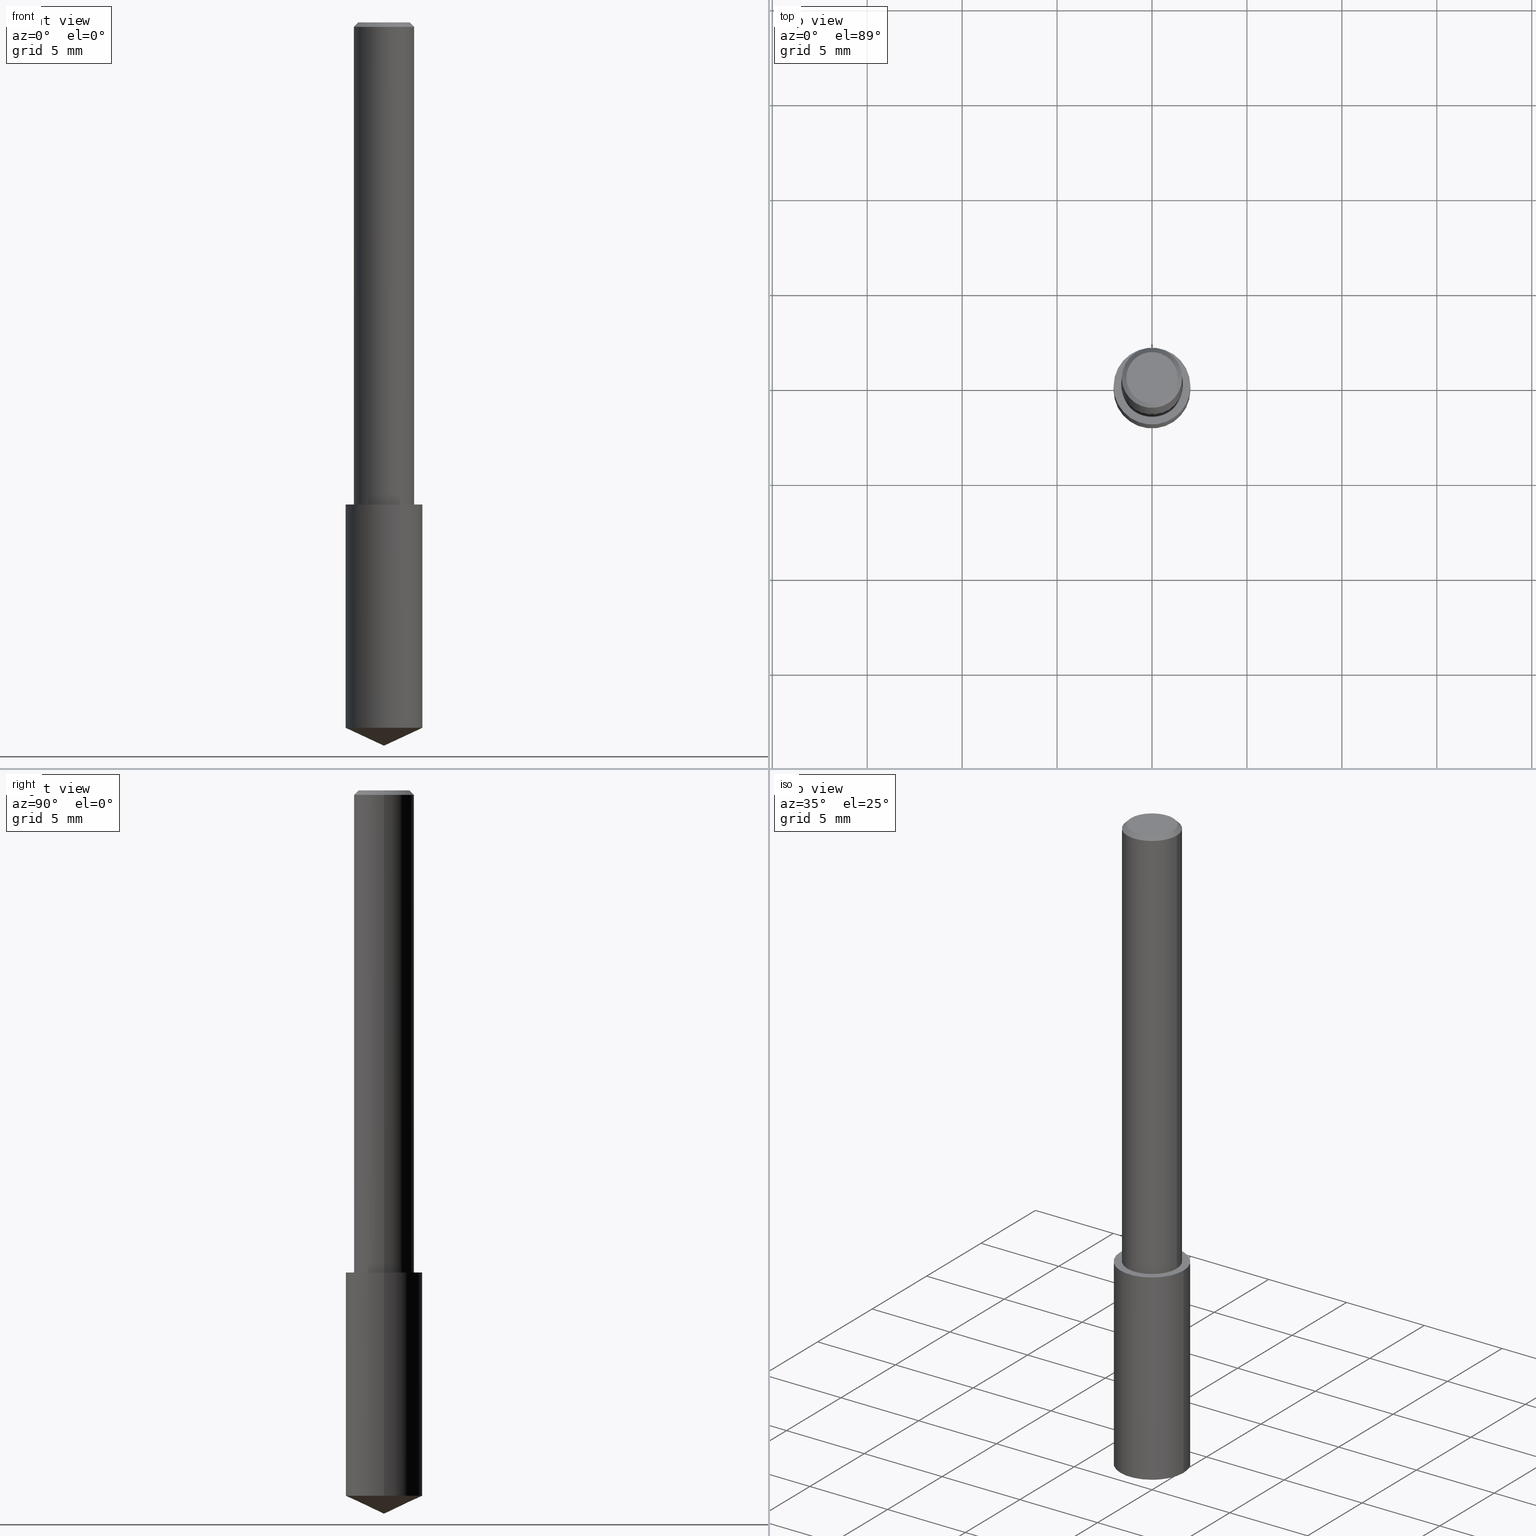
[diagram: canonical four-view strip — front | top / right | iso, engineering-drawing reading convention]
A machine part, canonical four-view strip (front | top / right | iso — engineering-drawing reading convention). The complete STEP part file that produces these views, byte-faithful:
ISO-10303-21;
HEADER;
FILE_DESCRIPTION (( 'STEP AP203' ),
    '1' );
FILE_NAME ('06098.STEP',
    '2024-04-30T18:20:22',
    ( '' ),
    ( '' ),
    'SwSTEP 2.0',
    'SolidWorks 2023',
    '' );
FILE_SCHEMA (( 'CONFIG_CONTROL_DESIGN' ));
ENDSEC;

DATA;
#1 = CARTESIAN_POINT ( 'NONE',  ( 3.577318044959073984E-29, -5.107462080682076738E-15, -1.462835279645047226 ) ) ;
#2 = CONICAL_SURFACE ( 'NONE', #197, 84.42940631927498885, 1.134464013796318893 ) ;
#3 = EDGE_CURVE ( 'NONE', #205, #311, #156, .T. ) ;
#4 = CIRCLE ( 'NONE', #227, 0.07969999999999999307 ) ;
#5 = CARTESIAN_POINT ( 'NONE',  ( 2.292627005798581499E-31, -3.273263755165471417E-17, -0.009375000000000063838 ) ) ;
#6 = VERTEX_POINT ( 'NONE', #81 ) ;
#7 = ORIENTED_EDGE ( 'NONE', *, *, #94, .T. ) ;
#8 = COORDINATED_UNIVERSAL_TIME_OFFSET ( 5, 0, .BEHIND. ) ;
#9 = VERTEX_POINT ( 'NONE', #179 ) ;
#10 = AXIS2_PLACEMENT_3D ( 'NONE', #5, #210, #291 ) ;
#11 = ORIENTED_EDGE ( 'NONE', *, *, #137, .F. ) ;
#12 = CARTESIAN_POINT ( 'NONE',  ( 2.292627005798581499E-31, -3.273263755165471417E-17, -0.009375000000000063838 ) ) ;
#13 = EDGE_CURVE ( 'NONE', #311, #205, #36, .T. ) ;
#14 = ORIENTED_EDGE ( 'NONE', *, *, #84, .F. ) ;
#15 = DIRECTION ( 'NONE',  ( -2.445468806185136597E-29, 3.491481338843145583E-15, 1.000000000000000000 ) ) ;
#16 = FACE_OUTER_BOUND ( 'NONE', #20, .T. ) ;
#17 = CC_DESIGN_SECURITY_CLASSIFICATION ( #308, ( #241 ) ) ;
#18 = ORIENTED_EDGE ( 'NONE', *, *, #312, .F. ) ;
#19 = DIRECTION ( 'NONE',  ( 1.000000000000000000, -6.982962677686266711E-15, 0.000000000000000000 ) ) ;
#20 = EDGE_LOOP ( 'NONE', ( #133, #102, #181, #62 ) ) ;
#21 = CARTESIAN_POINT ( 'NONE',  ( 2.292627005798581499E-31, -3.273263755165471417E-17, -0.009375000000000063838 ) ) ;
#22 = AXIS2_PLACEMENT_3D ( 'NONE', #99, #318, #124 ) ;
#23 = ORIENTED_EDGE ( 'NONE', *, *, #3, .T. ) ;
#24 = ADVANCED_FACE ( 'NONE', ( #28 ), #116, .F. ) ;
#25 = ADVANCED_FACE ( 'NONE', ( #96 ), #83, .F. ) ;
#26 = APPROVAL ( #184, 'UNSPECIFIED' ) ;
#27 = APPROVAL_DATE_TIME ( #340, #132 ) ;
#28 = FACE_OUTER_BOUND ( 'NONE', #239, .T. ) ;
#29 = ORIENTED_EDGE ( 'NONE', *, *, #303, .F. ) ;
#30 = COORDINATED_UNIVERSAL_TIME_OFFSET ( 5, 0, .BEHIND. ) ;
#31 = VECTOR ( 'NONE', #257, 39.37007874015748143 ) ;
#32 = APPROVAL_ROLE ( '' ) ;
#33 = EDGE_LOOP ( 'NONE', ( #64, #287, #11 ) ) ;
#34 = ADVANCED_FACE ( 'NONE', ( #222 ), #310, .T. ) ;
#35 = DIRECTION ( 'NONE',  ( 2.445468806185136597E-29, -3.491481338843145583E-15, -1.000000000000000000 ) ) ;
#36 = CIRCLE ( 'NONE', #298, 0.05312499999999999861 ) ;
#37 = PERSON_AND_ORGANIZATION_ROLE ( 'design_supplier' ) ;
#38 = COORDINATED_UNIVERSAL_TIME_OFFSET ( 5, 0, .BEHIND. ) ;
#39 = AXIS2_PLACEMENT_3D ( 'NONE', #282, #262, #286 ) ;
#40 = VERTEX_POINT ( 'NONE', #216 ) ;
#41 = MANIFOLD_SOLID_BREP ( 'Body-Move/Copy2[1]', #240 ) ;
#42 = LINE ( 'NONE', #110, #122 ) ;
#43 = CALENDAR_DATE ( 2024, 30, 4 ) ;
#44 = ORIENTED_EDGE ( 'NONE', *, *, #301, .F. ) ;
#45 = FACE_OUTER_BOUND ( 'NONE', #223, .T. ) ;
#46 =( NAMED_UNIT ( * ) PLANE_ANGLE_UNIT ( ) SI_UNIT ( $, .RADIAN. ) );
#47 = DIRECTION ( 'NONE',  ( -2.445468806185136877E-29, 3.491481338843145188E-15, 1.000000000000000000 ) ) ;
#48 = PERSON_AND_ORGANIZATION_ROLE ( 'design_owner' ) ;
#49 = DIRECTION ( 'NONE',  ( 1.000000000000000000, -6.982962677686266711E-15, 0.000000000000000000 ) ) ;
#50 = CARTESIAN_POINT ( 'NONE',  ( -3.743544432386672853E-50, 5.344789307371238476E-36, 1.530808498934197599E-21 ) ) ;
#51 = DIRECTION ( 'NONE',  ( 1.000000000000000000, -6.982962677686270655E-15, 0.000000000000000000 ) ) ;
#52 = CONICAL_SURFACE ( 'NONE', #244, 0.06250000000000000000, 0.7853981633974450594 ) ;
#53 = CALENDAR_DATE ( 2024, 30, 4 ) ;
#54 = CC_DESIGN_PERSON_AND_ORGANIZATION_ASSIGNMENT ( #143, #231, ( #263 ) ) ;
#55 = VERTEX_POINT ( 'NONE', #324 ) ;
#56 = FACE_OUTER_BOUND ( 'NONE', #279, .T. ) ;
#57 = EDGE_CURVE ( 'NONE', #40, #55, #219, .T. ) ;
#58 = VECTOR ( 'NONE', #47, 39.37007874015748143 ) ;
#59 = ADVANCED_FACE ( 'NONE', ( #172 ), #2, .T. ) ;
#60 = ADVANCED_FACE ( 'NONE', ( #321 ), #52, .T. ) ;
#61 = AXIS2_PLACEMENT_3D ( 'NONE', #249, #15, #277 ) ;
#62 = ORIENTED_EDGE ( 'NONE', *, *, #94, .F. ) ;
#63 = DIRECTION ( 'NONE',  ( -1.000000000000000000, 6.982962677686265922E-15, -4.876176775795935793E-29 ) ) ;
#64 = ORIENTED_EDGE ( 'NONE', *, *, #254, .F. ) ;
#65 = AXIS2_PLACEMENT_3D ( 'NONE', #173, #199, #306 ) ;
#66 = ORIENTED_EDGE ( 'NONE', *, *, #13, .F. ) ;
#67 = LINE ( 'NONE', #120, #31 ) ;
#68 = CYLINDRICAL_SURFACE ( 'NONE', #61, 0.07969999999999999307 ) ;
#69 = CC_DESIGN_APPROVAL ( #89, ( #241 ) ) ;
#70 = DIRECTION ( 'NONE',  ( -2.445468806185136597E-29, 3.491481338843145583E-15, 1.000000000000000000 ) ) ;
#71 = DIRECTION ( 'NONE',  ( -2.445468806185136597E-29, 3.491481338843145583E-15, 1.000000000000000000 ) ) ;
#72 = DIRECTION ( 'NONE',  ( -2.445468806185136597E-29, 3.491481338843145583E-15, 1.000000000000000000 ) ) ;
#73 = ORIENTED_EDGE ( 'NONE', *, *, #193, .F. ) ;
#74 = SHAPE_DEFINITION_REPRESENTATION ( #245, #104 ) ;
#75 = COORDINATED_UNIVERSAL_TIME_OFFSET ( 5, 0, .BEHIND. ) ;
#76 = AXIS2_PLACEMENT_3D ( 'NONE', #331, #302, #63 ) ;
#77 = EDGE_LOOP ( 'NONE', ( #164, #225, #44, #170 ) ) ;
#78 = LINE ( 'NONE', #80, #248 ) ;
#79 = DATE_TIME_ROLE ( 'classification_date' ) ;
#80 = CARTESIAN_POINT ( 'NONE',  ( -0.06250000000000000000, 4.037025298037369491E-16, -0.009375000000000063838 ) ) ;
#81 = CARTESIAN_POINT ( 'NONE',  ( -0.07969999999999996532, -4.541159520281276939E-15, -1.462835279645047226 ) ) ;
#82 = SECURITY_CLASSIFICATION_LEVEL ( 'unclassified' ) ;
#83 = PLANE ( 'NONE',  #147 ) ;
#84 = EDGE_CURVE ( 'NONE', #311, #251, #78, .T. ) ;
#85 = VERTEX_POINT ( 'NONE', #127 ) ;
#86 = CARTESIAN_POINT ( 'NONE',  ( 0.000000000000000000, 0.000000000000000000, 0.000000000000000000 ) ) ;
#87 = ADVANCED_FACE ( 'NONE', ( #56 ), #141, .T. ) ;
#88 = PERSON_AND_ORGANIZATION ( #139, #207 ) ;
#89 = APPROVAL ( #267, 'UNSPECIFIED' ) ;
#90 = DIRECTION ( 'NONE',  ( -2.445468806185136597E-29, 3.491481338843145583E-15, 1.000000000000000000 ) ) ;
#91 = EDGE_LOOP ( 'NONE', ( #200, #275 ) ) ;
#92 = DIRECTION ( 'NONE',  ( -1.000000000000000000, 6.982962677686265922E-15, -4.876176775795935793E-29 ) ) ;
#93 = CIRCLE ( 'NONE', #235, 0.07969999999999999307 ) ;
#94 = EDGE_CURVE ( 'NONE', #251, #55, #220, .T. ) ;
#95 = APPLICATION_PROTOCOL_DEFINITION ( 'international standard', 'config_control_design', 1994, #107 ) ;
#96 = FACE_OUTER_BOUND ( 'NONE', #158, .T. ) ;
#97 = APPROVAL_PERSON_ORGANIZATION ( #260, #132, #337 ) ;
#98 = DIRECTION ( 'NONE',  ( 1.000000000000000000, -6.982962677686266711E-15, 0.000000000000000000 ) ) ;
#99 = CARTESIAN_POINT ( 'NONE',  ( -7.487088864773345706E-50, 1.068957861474247695E-35, 3.061616997868395197E-21 ) ) ;
#100 = DIRECTION ( 'NONE',  ( -2.445468806185136597E-29, 3.491481338843145583E-15, 1.000000000000000000 ) ) ;
#101 = AXIS2_PLACEMENT_3D ( 'NONE', #21, #70, #19 ) ;
#102 = ORIENTED_EDGE ( 'NONE', *, *, #130, .T. ) ;
#103 = FACE_OUTER_BOUND ( 'NONE', #328, .T. ) ;
#104 = ADVANCED_BREP_SHAPE_REPRESENTATION ( '06098', ( #41, #271, #39 ), #327 ) ;
#105 = VECTOR ( 'NONE', #203, 39.37007874015748143 ) ;
#106 = CYLINDRICAL_SURFACE ( 'NONE', #317, 0.06250000000000006939 ) ;
#107 = APPLICATION_CONTEXT ( 'configuration controlled 3d designs of mechanical parts and assemblies' ) ;
#108 = ADVANCED_FACE ( 'NONE', ( #103 ), #218, .T. ) ;
#109 = ORIENTED_EDGE ( 'NONE', *, *, #137, .T. ) ;
#110 = CARTESIAN_POINT ( 'NONE',  ( -0.07969999999999999307, -2.925178778442346967E-15, -1.000000000000000222 ) ) ;
#111 = DIRECTION ( 'NONE',  ( 1.000000000000000000, -6.982962677686265133E-15, 0.000000000000000000 ) ) ;
#112 = AXIS2_PLACEMENT_3D ( 'NONE', #150, #230, #176 ) ;
#113 = VECTOR ( 'NONE', #315, 39.37007874015748143 ) ;
#114 = APPLICATION_PROTOCOL_DEFINITION ( 'international standard', 'config_control_design', 1994, #131 ) ;
#115 = CARTESIAN_POINT ( 'NONE',  ( 3.668203209277704895E-29, -5.237222008264718177E-15, -1.500000000000000222 ) ) ;
#116 = PLANE ( 'NONE',  #190 ) ;
#117 = CARTESIAN_POINT ( 'NONE',  ( -9.261009624683002666E-28, 1.322226732217803884E-13, 37.87007874015748143 ) ) ;
#118 = ORIENTED_EDGE ( 'NONE', *, *, #134, .T. ) ;
#119 = DIRECTION ( 'NONE',  ( 1.000000000000000000, -6.982962677686264344E-15, 0.000000000000000000 ) ) ;
#120 = CARTESIAN_POINT ( 'NONE',  ( 3.668203209277704895E-29, -5.237222008264718177E-15, -1.500000000000000222 ) ) ;
#121 = CARTESIAN_POINT ( 'NONE',  ( -7.487088864773345706E-50, 1.068957861474247695E-35, 3.061616997868395197E-21 ) ) ;
#122 = VECTOR ( 'NONE', #316, 39.37007874015748143 ) ;
#123 = ADVANCED_FACE ( 'NONE', ( #305 ), #246, .F. ) ;
#124 = DIRECTION ( 'NONE',  ( 1.000000000000000000, -6.982962677686266711E-15, 4.876176628004948512E-29 ) ) ;
#125 = ADVANCED_FACE ( 'NONE', ( #16 ), #106, .T. ) ;
#126 = APPROVAL_DATE_TIME ( #186, #26 ) ;
#127 = CARTESIAN_POINT ( 'NONE',  ( 0.07969999999999999307, -4.048023464254741036E-15, -1.000000000000000222 ) ) ;
#128 = EDGE_LOOP ( 'NONE', ( #18, #66, #217, #7 ) ) ;
#129 = DIRECTION ( 'NONE',  ( -2.445468806185136597E-29, 3.491481338843145583E-15, 1.000000000000000000 ) ) ;
#130 = EDGE_CURVE ( 'NONE', #283, #40, #313, .T. ) ;
#131 = APPLICATION_CONTEXT ( 'configuration controlled 3d designs of mechanical parts and assemblies' ) ;
#132 = APPROVAL ( #229, 'UNSPECIFIED' ) ;
#133 = ORIENTED_EDGE ( 'NONE', *, *, #215, .F. ) ;
#134 = EDGE_CURVE ( 'NONE', #165, #85, #288, .T. ) ;
#135 = EDGE_CURVE ( 'NONE', #40, #283, #278, .T. ) ;
#136 = DIRECTION ( 'NONE',  ( 1.000000000000000000, -6.982962677686265133E-15, 0.000000000000000000 ) ) ;
#137 = EDGE_CURVE ( 'NONE', #6, #165, #93, .T. ) ;
#138 = ORIENTED_EDGE ( 'NONE', *, *, #178, .F. ) ;
#139 = PERSON ( 'UNSPECIFIED', 'UNSPECIFIED', 'UNSPECIFIED', ('UNSPECIFIED'), ('UNSPECIFIED'), ('UNSPECIFIED') ) ;
#140 = CARTESIAN_POINT ( 'NONE',  ( 0.07969999999999996532, -5.664004206093671797E-15, -1.462835279645047226 ) ) ;
#141 = CONICAL_SURFACE ( 'NONE', #226, 84.42940631927498885, 1.134464013796318893 ) ;
#142 = ORIENTED_EDGE ( 'NONE', *, *, #254, .T. ) ;
#143 = PERSON_AND_ORGANIZATION ( #139, #207 ) ;
#144 = ORIENTED_EDGE ( 'NONE', *, *, #183, .F. ) ;
#145 = CARTESIAN_POINT ( 'NONE',  ( 3.668203209277704895E-29, -5.237222008264718177E-15, -1.500000000000000222 ) ) ;
#146 = CARTESIAN_POINT ( 'NONE',  ( -0.06250000000000012490, -1.318017778347335489E-15, -1.000000000000000222 ) ) ;
#147 = AXIS2_PLACEMENT_3D ( 'NONE', #276, #250, #329 ) ;
#148 = LOCAL_TIME ( 14, 20, 22.00000000000000000, #38 ) ;
#149 = LINE ( 'NONE', #145, #198 ) ;
#150 = CARTESIAN_POINT ( 'NONE',  ( 2.445468806185137438E-29, -3.491481338843146371E-15, -1.000000000000000222 ) ) ;
#151 = PERSON_AND_ORGANIZATION ( #139, #207 ) ;
#152 = CARTESIAN_POINT ( 'NONE',  ( 2.445468806185137438E-29, -3.491481338843146371E-15, -1.000000000000000222 ) ) ;
#153 =( LENGTH_UNIT ( ) NAMED_UNIT ( * ) SI_UNIT ( $, .METRE. ) );
#154 = ORIENTED_EDGE ( 'NONE', *, *, #303, .T. ) ;
#155 = ORIENTED_EDGE ( 'NONE', *, *, #3, .F. ) ;
#156 = CIRCLE ( 'NONE', #22, 0.05312499999999999861 ) ;
#157 = PERSON_AND_ORGANIZATION_ROLE ( 'creator' ) ;
#158 = EDGE_LOOP ( 'NONE', ( #338, #195 ) ) ;
#159 = DATE_AND_TIME ( #238, #274 ) ;
#160 = DIRECTION ( 'NONE',  ( -1.000000000000000000, 6.982962677686266711E-15, 0.000000000000000000 ) ) ;
#161 = DESIGN_CONTEXT ( 'detailed design', #131, 'design' ) ;
#162 = AXIS2_PLACEMENT_3D ( 'NONE', #152, #330, #119 ) ;
#163 = CC_DESIGN_DATE_AND_TIME_ASSIGNMENT ( #292, #79, ( #308 ) ) ;
#164 = ORIENTED_EDGE ( 'NONE', *, *, #183, .T. ) ;
#165 = VERTEX_POINT ( 'NONE', #140 ) ;
#166 = AXIS2_PLACEMENT_3D ( 'NONE', #169, #285, #136 ) ;
#167 = DIRECTION ( 'NONE',  ( 1.000000000000000000, -6.982962677686270655E-15, 0.000000000000000000 ) ) ;
#168 = MECHANICAL_CONTEXT ( 'NONE', #107, 'mechanical' ) ;
#169 = CARTESIAN_POINT ( 'NONE',  ( 2.445468806185137438E-29, -3.491481338843146371E-15, -1.000000000000000222 ) ) ;
#170 = ORIENTED_EDGE ( 'NONE', *, *, #134, .F. ) ;
#171 =( CONVERSION_BASED_UNIT ( 'INCH', #259 ) LENGTH_UNIT ( ) NAMED_UNIT ( #213 ) );
#172 = FACE_OUTER_BOUND ( 'NONE', #33, .T. ) ;
#173 = CARTESIAN_POINT ( 'NONE',  ( 2.445468806185136877E-29, -3.491481338843145977E-15, -1.000000000000000222 ) ) ;
#174 = ADVANCED_FACE ( 'NONE', ( #45 ), #68, .T. ) ;
#175 = CIRCLE ( 'NONE', #101, 0.06250000000000000000 ) ;
#176 = DIRECTION ( 'NONE',  ( 1.000000000000000000, -6.982962677686264344E-15, 0.000000000000000000 ) ) ;
#177 = LINE ( 'NONE', #202, #293 ) ;
#178 = EDGE_CURVE ( 'NONE', #6, #9, #42, .T. ) ;
#179 = CARTESIAN_POINT ( 'NONE',  ( -0.07969999999999999307, -3.733169149361811559E-15, -1.000000000000000222 ) ) ;
#180 = ADVANCED_FACE ( 'NONE', ( #264 ), #214, .T. ) ;
#181 = ORIENTED_EDGE ( 'NONE', *, *, #57, .T. ) ;
#182 = PERSON_AND_ORGANIZATION ( #139, #207 ) ;
#183 = EDGE_CURVE ( 'NONE', #165, #6, #258, .T. ) ;
#184 = APPROVAL_STATUS ( 'not_yet_approved' ) ;
#185 = CIRCLE ( 'NONE', #65, 0.07969999999999999307 ) ;
#186 = DATE_AND_TIME ( #53, #148 ) ;
#187 = DIRECTION ( 'NONE',  ( -2.445468806185136597E-29, 3.491481338843145583E-15, 1.000000000000000000 ) ) ;
#188 = ORIENTED_EDGE ( 'NONE', *, *, #339, .F. ) ;
#189 = PERSON_AND_ORGANIZATION ( #139, #207 ) ;
#190 = AXIS2_PLACEMENT_3D ( 'NONE', #50, #232, #92 ) ;
#191 = APPROVAL_PERSON_ORGANIZATION ( #189, #26, #32 ) ;
#192 = LOCAL_TIME ( 14, 20, 22.00000000000000000, #289 ) ;
#193 = EDGE_CURVE ( 'NONE', #233, #165, #149, .T. ) ;
#194 = AXIS2_PLACEMENT_3D ( 'NONE', #1, #72, #51 ) ;
#195 = ORIENTED_EDGE ( 'NONE', *, *, #130, .F. ) ;
#196 = DIRECTION ( 'NONE',  ( -2.445468806185136597E-29, 3.491481338843145583E-15, 1.000000000000000000 ) ) ;
#197 = AXIS2_PLACEMENT_3D ( 'NONE', #117, #71, #49 ) ;
#198 = VECTOR ( 'NONE', #256, 39.37007874015748143 ) ;
#199 = DIRECTION ( 'NONE',  ( -2.445468806185136597E-29, 3.491481338843145583E-15, 1.000000000000000000 ) ) ;
#200 = ORIENTED_EDGE ( 'NONE', *, *, #301, .T. ) ;
#201 = CARTESIAN_POINT ( 'NONE',  ( 2.445468806185136877E-29, -3.491481338843145977E-15, -1.000000000000000222 ) ) ;
#202 = CARTESIAN_POINT ( 'NONE',  ( 0.06250000000000000000, -4.615137624123754923E-16, -0.009375000000000063838 ) ) ;
#203 = DIRECTION ( 'NONE',  ( -2.445468806185136877E-29, 3.491481338843145188E-15, 1.000000000000000000 ) ) ;
#204 = CC_DESIGN_PERSON_AND_ORGANIZATION_ASSIGNMENT ( #182, #37, ( #241 ) ) ;
#205 = VERTEX_POINT ( 'NONE', #319 ) ;
#206 = CLOSED_SHELL ( 'NONE', ( #60, #108, #25, #125, #180, #24 ) ) ;
#207 = ORGANIZATION ( 'UNSPECIFIED', 'UNSPECIFIED', '' ) ;
#208 = EDGE_LOOP ( 'NONE', ( #155, #247, #154, #14 ) ) ;
#209 = PERSON_AND_ORGANIZATION_ROLE ( 'classification_officer' ) ;
#210 = DIRECTION ( 'NONE',  ( 2.445468806185136597E-29, -3.491481338843145583E-15, -1.000000000000000000 ) ) ;
#211 = PERSON_AND_ORGANIZATION ( #139, #207 ) ;
#212 = APPROVAL_ROLE ( '' ) ;
#213 = DIMENSIONAL_EXPONENTS ( 1.000000000000000000, 0.000000000000000000, 0.000000000000000000, 0.000000000000000000, 0.000000000000000000, 0.000000000000000000, 0.000000000000000000 ) ;
#214 = CONICAL_SURFACE ( 'NONE', #10, 0.06250000000000000000, 0.7853981633974450594 ) ;
#215 = EDGE_CURVE ( 'NONE', #283, #251, #323, .T. ) ;
#216 = CARTESIAN_POINT ( 'NONE',  ( 0.06250000000000012490, -3.927916506198539224E-15, -1.000000000000000222 ) ) ;
#217 = ORIENTED_EDGE ( 'NONE', *, *, #84, .T. ) ;
#218 = CYLINDRICAL_SURFACE ( 'NONE', #273, 0.06250000000000006939 ) ;
#219 = LINE ( 'NONE', #335, #105 ) ;
#220 = CIRCLE ( 'NONE', #269, 0.06250000000000000000 ) ;
#221 = LOCAL_TIME ( 14, 20, 22.00000000000000000, #8 ) ;
#222 = FACE_OUTER_BOUND ( 'NONE', #77, .T. ) ;
#223 = EDGE_LOOP ( 'NONE', ( #138, #109, #118, #188 ) ) ;
#224 = DATE_AND_TIME ( #253, #192 ) ;
#225 = ORIENTED_EDGE ( 'NONE', *, *, #178, .T. ) ;
#226 = AXIS2_PLACEMENT_3D ( 'NONE', #268, #129, #98 ) ;
#227 = AXIS2_PLACEMENT_3D ( 'NONE', #201, #90, #111 ) ;
#228 =( NAMED_UNIT ( * ) SI_UNIT ( $, .STERADIAN. ) SOLID_ANGLE_UNIT ( ) );
#229 = APPROVAL_STATUS ( 'not_yet_approved' ) ;
#230 = DIRECTION ( 'NONE',  ( -2.445468806185136597E-29, 3.491481338843145583E-15, 1.000000000000000000 ) ) ;
#231 = PERSON_AND_ORGANIZATION_ROLE ( 'creator' ) ;
#232 = DIRECTION ( 'NONE',  ( 2.438088387897960049E-29, -3.491481338843145188E-15, -1.000000000000000000 ) ) ;
#233 = VERTEX_POINT ( 'NONE', #115 ) ;
#234 = CARTESIAN_POINT ( 'NONE',  ( 3.577318044959073984E-29, -5.107462080682076738E-15, -1.462835279645047226 ) ) ;
#235 = AXIS2_PLACEMENT_3D ( 'NONE', #234, #196, #167 ) ;
#236 = DIRECTION ( 'NONE',  ( 0.7071067811865452413, -7.319954787623248157E-15, -0.7071067811865497932 ) ) ;
#237 = CC_DESIGN_PERSON_AND_ORGANIZATION_ASSIGNMENT ( #151, #48, ( #299 ) ) ;
#238 = CALENDAR_DATE ( 2024, 30, 4 ) ;
#239 = EDGE_LOOP ( 'NONE', ( #265, #23 ) ) ;
#240 = CLOSED_SHELL ( 'NONE', ( #34, #87, #59, #174, #123 ) ) ;
#241 = PRODUCT_DEFINITION_FORMATION_WITH_SPECIFIED_SOURCE ( 'ANY', '', #299, .NOT_KNOWN. ) ;
#242 = CARTESIAN_POINT ( 'NONE',  ( 2.292627005798581499E-31, -3.273263755165471417E-17, -0.009375000000000063838 ) ) ;
#243 = PRODUCT_RELATED_PRODUCT_CATEGORY ( 'detail', '', ( #299 ) ) ;
#244 = AXIS2_PLACEMENT_3D ( 'NONE', #242, #35, #160 ) ;
#245 = PRODUCT_DEFINITION_SHAPE ( 'NONE', 'NONE',  #263 ) ;
#246 = PLANE ( 'NONE',  #76 ) ;
#247 = ORIENTED_EDGE ( 'NONE', *, *, #312, .T. ) ;
#248 = VECTOR ( 'NONE', #296, 39.37007874015748143 ) ;
#249 = CARTESIAN_POINT ( 'NONE',  ( 2.445468806185137438E-29, -3.491481338843146371E-15, -1.000000000000000222 ) ) ;
#250 = DIRECTION ( 'NONE',  ( -2.438088387897960049E-29, 3.491481338843145188E-15, 1.000000000000000000 ) ) ;
#251 = VERTEX_POINT ( 'NONE', #309 ) ;
#252 = DIRECTION ( 'NONE',  ( 1.000000000000000000, -6.982962677686266711E-15, 4.876176775795935793E-29 ) ) ;
#253 = CALENDAR_DATE ( 2024, 30, 4 ) ;
#254 = EDGE_CURVE ( 'NONE', #233, #6, #67, .T. ) ;
#255 = ORIENTED_EDGE ( 'NONE', *, *, #57, .F. ) ;
#256 = DIRECTION ( 'NONE',  ( 0.9063077870366519351, -4.853149677051408767E-15, 0.4226182617406952224 ) ) ;
#257 = DIRECTION ( 'NONE',  ( -0.9063077870366519351, 7.915267918739014631E-15, 0.4226182617406952224 ) ) ;
#258 = CIRCLE ( 'NONE', #194, 0.07969999999999999307 ) ;
#259 = LENGTH_MEASURE_WITH_UNIT ( LENGTH_MEASURE( 0.02539999999999999897 ), #153 );
#260 = PERSON_AND_ORGANIZATION ( #139, #207 ) ;
#261 = DIRECTION ( 'NONE',  ( 1.000000000000000000, -6.982962677686266711E-15, 4.876176628004948512E-29 ) ) ;
#262 = DIRECTION ( 'NONE',  ( 0.000000000000000000, 0.000000000000000000, 1.000000000000000000 ) ) ;
#263 = PRODUCT_DEFINITION ( 'UNKNOWN', '', #241, #161 ) ;
#264 = FACE_OUTER_BOUND ( 'NONE', #128, .T. ) ;
#265 = ORIENTED_EDGE ( 'NONE', *, *, #13, .T. ) ;
#266 = APPROVAL_DATE_TIME ( #159, #89 ) ;
#267 = APPROVAL_STATUS ( 'not_yet_approved' ) ;
#268 = CARTESIAN_POINT ( 'NONE',  ( -9.261009624683002666E-28, 1.322226732217803884E-13, 37.87007874015748143 ) ) ;
#269 = AXIS2_PLACEMENT_3D ( 'NONE', #12, #187, #294 ) ;
#270 = CC_DESIGN_APPROVAL ( #26, ( #308 ) ) ;
#271 = MANIFOLD_SOLID_BREP ( 'Body-Move/Copy2[2]', #206 ) ;
#272 = UNCERTAINTY_MEASURE_WITH_UNIT (LENGTH_MEASURE( 1.000000000000000082E-05 ), #171, 'distance_accuracy_value', 'NONE');
#273 = AXIS2_PLACEMENT_3D ( 'NONE', #326, #100, #252 ) ;
#274 = LOCAL_TIME ( 14, 20, 22.00000000000000000, #75 ) ;
#275 = ORIENTED_EDGE ( 'NONE', *, *, #339, .T. ) ;
#276 = CARTESIAN_POINT ( 'NONE',  ( 2.445468806185137438E-29, -3.491481338843146371E-15, -1.000000000000000222 ) ) ;
#277 = DIRECTION ( 'NONE',  ( 1.000000000000000000, -6.982962677686265133E-15, 0.000000000000000000 ) ) ;
#278 = CIRCLE ( 'NONE', #162, 0.06250000000000012490 ) ;
#279 = EDGE_LOOP ( 'NONE', ( #73, #142, #144 ) ) ;
#280 = APPROVAL_PERSON_ORGANIZATION ( #88, #89, #212 ) ;
#281 = CARTESIAN_POINT ( 'NONE',  ( 0.07969999999999999307, -4.048023464254741825E-15, -1.000000000000000222 ) ) ;
#282 = CARTESIAN_POINT ( 'NONE',  ( 0.000000000000000000, 0.000000000000000000, 0.000000000000000000 ) ) ;
#283 = VERTEX_POINT ( 'NONE', #146 ) ;
#284 = DIRECTION ( 'NONE',  ( -2.445468806185136597E-29, 3.491481338843145583E-15, 1.000000000000000000 ) ) ;
#285 = DIRECTION ( 'NONE',  ( -2.445468806185136597E-29, 3.491481338843145583E-15, 1.000000000000000000 ) ) ;
#286 = DIRECTION ( 'NONE',  ( 1.000000000000000000, 0.000000000000000000, 0.000000000000000000 ) ) ;
#287 = ORIENTED_EDGE ( 'NONE', *, *, #193, .T. ) ;
#288 = LINE ( 'NONE', #281, #58 ) ;
#289 = COORDINATED_UNIVERSAL_TIME_OFFSET ( 5, 0, .BEHIND. ) ;
#290 = CALENDAR_DATE ( 2024, 30, 4 ) ;
#291 = DIRECTION ( 'NONE',  ( -1.000000000000000000, 6.982962677686266711E-15, 0.000000000000000000 ) ) ;
#292 = DATE_AND_TIME ( #290, #221 ) ;
#293 = VECTOR ( 'NONE', #236, 39.37007874015748143 ) ;
#294 = DIRECTION ( 'NONE',  ( 1.000000000000000000, -6.982962677686266711E-15, 0.000000000000000000 ) ) ;
#295 = CC_DESIGN_PERSON_AND_ORGANIZATION_ASSIGNMENT ( #211, #157, ( #241 ) ) ;
#296 = DIRECTION ( 'NONE',  ( -0.7071067811865452413, 2.468850131082233000E-15, -0.7071067811865497932 ) ) ;
#297 = DIRECTION ( 'NONE',  ( -2.445468806185136597E-29, 3.491481338843145583E-15, 1.000000000000000000 ) ) ;
#298 = AXIS2_PLACEMENT_3D ( 'NONE', #121, #297, #261 ) ;
#299 = PRODUCT ( '06098', '06098', '', ( #168 ) ) ;
#300 = CC_DESIGN_APPROVAL ( #132, ( #263 ) ) ;
#301 = EDGE_CURVE ( 'NONE', #85, #9, #4, .T. ) ;
#302 = DIRECTION ( 'NONE',  ( 2.438088387897960049E-29, -3.491481338843145188E-15, -1.000000000000000000 ) ) ;
#303 = EDGE_CURVE ( 'NONE', #55, #251, #175, .T. ) ;
#304 = CC_DESIGN_PERSON_AND_ORGANIZATION_ASSIGNMENT ( #320, #209, ( #308 ) ) ;
#305 = FACE_OUTER_BOUND ( 'NONE', #91, .T. ) ;
#306 = DIRECTION ( 'NONE',  ( 1.000000000000000000, -6.982962677686265133E-15, 0.000000000000000000 ) ) ;
#307 = ORIENTED_EDGE ( 'NONE', *, *, #215, .T. ) ;
#308 = SECURITY_CLASSIFICATION ( '', '', #82 ) ;
#309 = CARTESIAN_POINT ( 'NONE',  ( -0.06250000000000000000, -1.318017778347336672E-15, -0.009375000000000063838 ) ) ;
#310 = CYLINDRICAL_SURFACE ( 'NONE', #166, 0.07969999999999999307 ) ;
#311 = VERTEX_POINT ( 'NONE', #334 ) ;
#312 = EDGE_CURVE ( 'NONE', #205, #55, #177, .T. ) ;
#313 = CIRCLE ( 'NONE', #112, 0.06250000000000012490 ) ;
#314 = LOCAL_TIME ( 14, 20, 22.00000000000000000, #30 ) ;
#315 = DIRECTION ( 'NONE',  ( -2.445468806185136877E-29, 3.491481338843145188E-15, 1.000000000000000000 ) ) ;
#316 = DIRECTION ( 'NONE',  ( -2.445468806185136877E-29, 3.491481338843145188E-15, 1.000000000000000000 ) ) ;
#317 = AXIS2_PLACEMENT_3D ( 'NONE', #86, #284, #336 ) ;
#318 = DIRECTION ( 'NONE',  ( -2.445468806185136597E-29, 3.491481338843145583E-15, 1.000000000000000000 ) ) ;
#319 = CARTESIAN_POINT ( 'NONE',  ( 0.05312499999999999861, -4.129888592719939842E-16, 3.061617000609493422E-21 ) ) ;
#320 = PERSON_AND_ORGANIZATION ( #139, #207 ) ;
#321 = FACE_OUTER_BOUND ( 'NONE', #208, .T. ) ;
#322 = CARTESIAN_POINT ( 'NONE',  ( -0.06250000000000006939, 4.440892098500631092E-16, -3.074334431409319267E-30 ) ) ;
#323 = LINE ( 'NONE', #322, #113 ) ;
#324 = CARTESIAN_POINT ( 'NONE',  ( 0.06250000000000000000, -4.691678049070464390E-16, -0.009375000000000063838 ) ) ;
#325 = ORIENTED_EDGE ( 'NONE', *, *, #135, .T. ) ;
#326 = CARTESIAN_POINT ( 'NONE',  ( 0.000000000000000000, 0.000000000000000000, 0.000000000000000000 ) ) ;
#327 =( GEOMETRIC_REPRESENTATION_CONTEXT ( 3 ) GLOBAL_UNCERTAINTY_ASSIGNED_CONTEXT ( ( #272 ) ) GLOBAL_UNIT_ASSIGNED_CONTEXT ( ( #171, #46, #228 ) ) REPRESENTATION_CONTEXT ( 'NONE', 'WORKASPACE' ) );
#328 = EDGE_LOOP ( 'NONE', ( #325, #307, #29, #255 ) ) ;
#329 = DIRECTION ( 'NONE',  ( 1.000000000000000000, -6.982962677686265922E-15, 4.876176775795935793E-29 ) ) ;
#330 = DIRECTION ( 'NONE',  ( -2.445468806185136597E-29, 3.491481338843145583E-15, 1.000000000000000000 ) ) ;
#331 = CARTESIAN_POINT ( 'NONE',  ( 3.642231201471816634E-29, -1.777649473307221347E-15, -1.000000000000000222 ) ) ;
#332 = DATE_TIME_ROLE ( 'creation_date' ) ;
#333 = CC_DESIGN_DATE_AND_TIME_ASSIGNMENT ( #224, #332, ( #263 ) ) ;
#334 = CARTESIAN_POINT ( 'NONE',  ( -0.05312499999999999861, 3.873362110279099094E-16, 3.061616995216862494E-21 ) ) ;
#335 = CARTESIAN_POINT ( 'NONE',  ( 0.06250000000000006939, -4.364351673553921624E-16, 3.047610484872463374E-30 ) ) ;
#336 = DIRECTION ( 'NONE',  ( 1.000000000000000000, -6.982962677686266711E-15, 4.876176775795935793E-29 ) ) ;
#337 = APPROVAL_ROLE ( '' ) ;
#338 = ORIENTED_EDGE ( 'NONE', *, *, #135, .F. ) ;
#339 = EDGE_CURVE ( 'NONE', #9, #85, #185, .T. ) ;
#340 = DATE_AND_TIME ( #43, #314 ) ;
ENDSEC;
END-ISO-10303-21;
